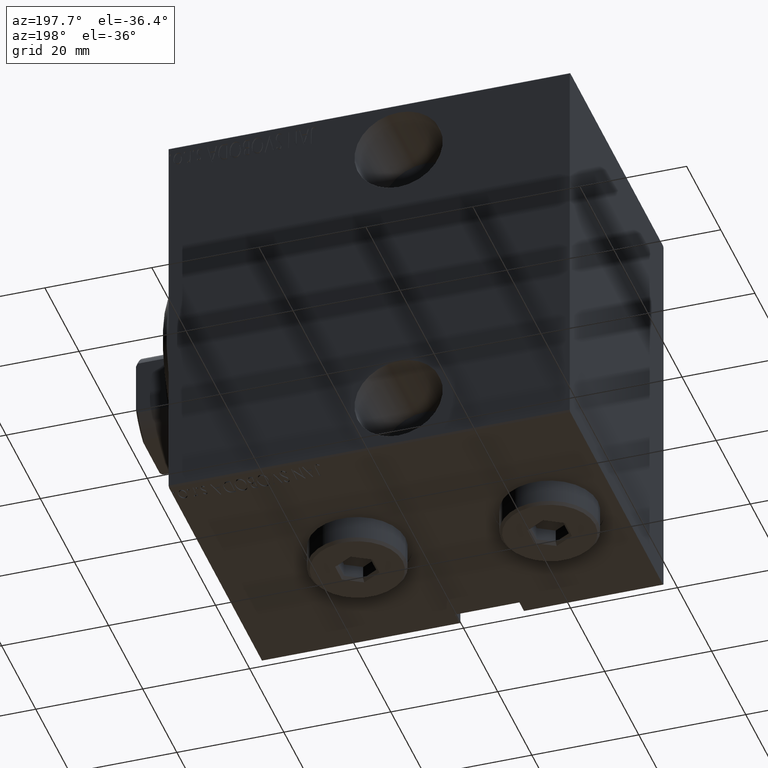
[diagram: clean part render]
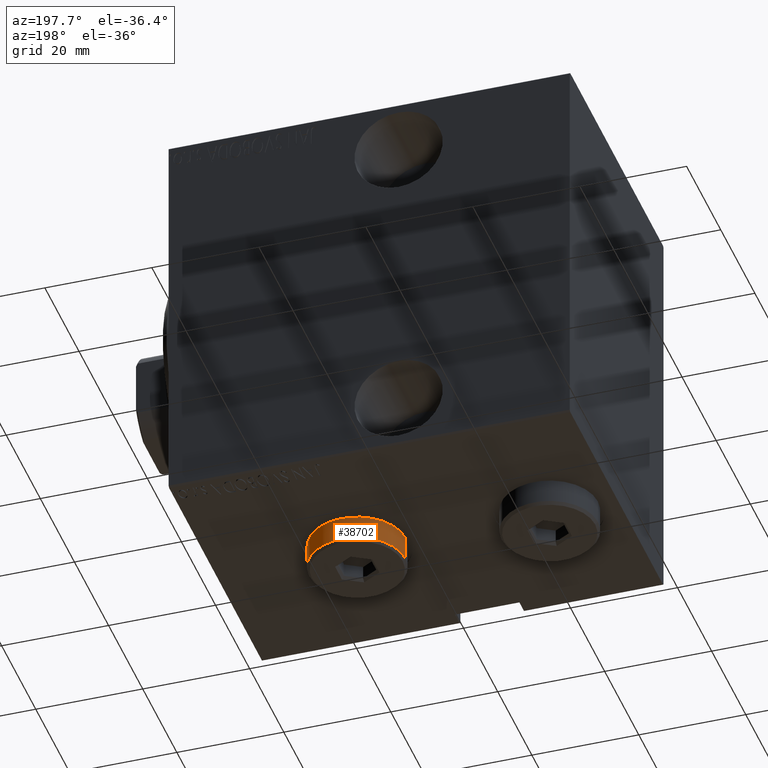
[diagram: same view with one face highlighted and labeled with its STEP entity id]
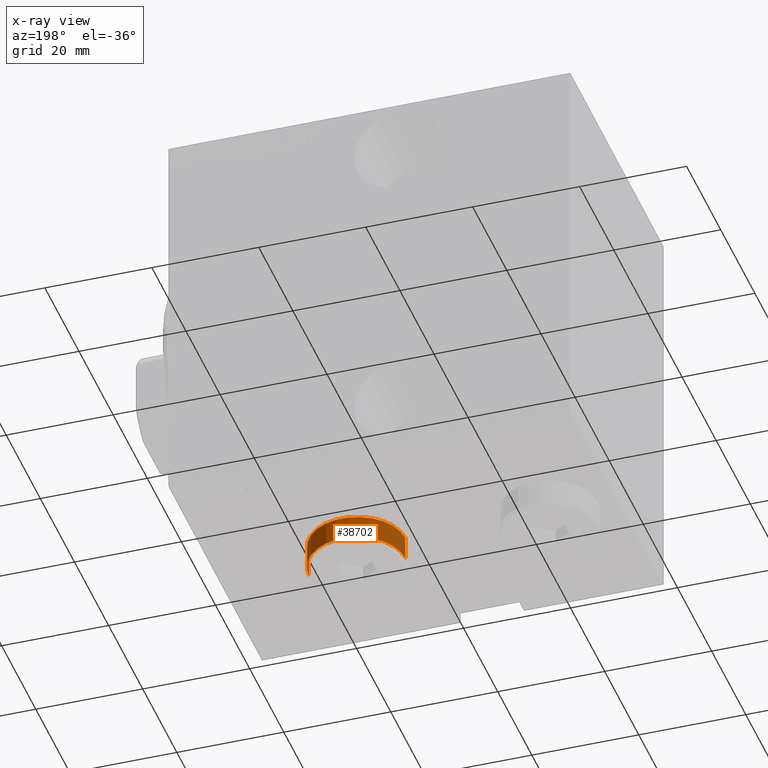
[diagram: x-ray of the same camera — body ghosted, the highlighted face saturated]
A machine part, auxiliary view. The second image highlights one B-rep face of the part: STEP entity #38702.
The next image is the same camera in x-ray: the body ghosted, the highlighted face saturated — about 0% of this face is hidden behind the body in this view.
In plain terms, the highlighted cylindrical surface (partial cylindrical patch) has radius 9 mm, axis along (0, 0, 1).
Its self-contained STEP definition (entity closure, byte-faithful):
#590 = EDGE_CURVE ( 'NONE', #31661, #14406, #19273, .T. ) ;
#766 = CARTESIAN_POINT ( 'NONE',  ( 0.000000000000000000, 0.000000000000000000, 5.000000000000000000 ) ) ;
#978 = ORIENTED_EDGE ( 'NONE', *, *, #590, .T. ) ;
#992 = FACE_OUTER_BOUND ( 'NONE', #43658, .T. ) ;
#1953 = CARTESIAN_POINT ( 'NONE',  ( 9.000000000000001776, 1.102182119232617911E-15, 4.500000000000006217 ) ) ;
#2868 = CARTESIAN_POINT ( 'NONE',  ( 0.000000000000000000, 0.000000000000000000, 0.000000000000000000 ) ) ;
#3287 = CARTESIAN_POINT ( 'NONE',  ( 9.000000000000001776, 1.102182119232617911E-15, 5.000000000000000000 ) ) ;
#3926 = AXIS2_PLACEMENT_3D ( 'NONE', #11932, #32832, #42814 ) ;
#5181 = DIRECTION ( 'NONE',  ( -0.000000000000000000, -0.000000000000000000, -1.000000000000000000 ) ) ;
#9541 = LINE ( 'NONE', #3287, #14891 ) ;
#11588 = VERTEX_POINT ( 'NONE', #1953 ) ;
#11659 = CYLINDRICAL_SURFACE ( 'NONE', #28376, 9.000000000000001776 ) ;
#11932 = CARTESIAN_POINT ( 'NONE',  ( 0.000000000000000000, 0.000000000000000000, 4.500000000000006217 ) ) ;
#12154 = AXIS2_PLACEMENT_3D ( 'NONE', #2868, #33551, #20435 ) ;
#14346 = DIRECTION ( 'NONE',  ( -0.000000000000000000, -0.000000000000000000, -1.000000000000000000 ) ) ;
#14406 = VERTEX_POINT ( 'NONE', #38671 ) ;
#14891 = VECTOR ( 'NONE', #23320, 1000.000000000000000 ) ;
#17865 = ORIENTED_EDGE ( 'NONE', *, *, #35439, .F. ) ;
#17950 = EDGE_CURVE ( 'NONE', #11588, #30152, #19585, .T. ) ;
#18347 = DIRECTION ( 'NONE',  ( -1.000000000000000000, 0.000000000000000000, 0.000000000000000000 ) ) ;
#18766 = LINE ( 'NONE', #25431, #40901 ) ;
#19273 = CIRCLE ( 'NONE', #12154, 9.000000000000001776 ) ;
#19585 = CIRCLE ( 'NONE', #3926, 9.000000000000001776 ) ;
#20435 = DIRECTION ( 'NONE',  ( 1.000000000000000000, 0.000000000000000000, 0.000000000000000000 ) ) ;
#22131 = CARTESIAN_POINT ( 'NONE',  ( -9.000000000000001776, 0.000000000000000000, 4.500000000000006217 ) ) ;
#23320 = DIRECTION ( 'NONE',  ( -0.000000000000000000, -0.000000000000000000, -1.000000000000000000 ) ) ;
#24423 = EDGE_CURVE ( 'NONE', #30152, #31661, #18766, .T. ) ;
#25431 = CARTESIAN_POINT ( 'NONE',  ( -9.000000000000001776, 0.000000000000000000, 5.000000000000000000 ) ) ;
#28376 = AXIS2_PLACEMENT_3D ( 'NONE', #766, #14346, #18347 ) ;
#30152 = VERTEX_POINT ( 'NONE', #22131 ) ;
#30260 = ORIENTED_EDGE ( 'NONE', *, *, #24423, .T. ) ;
#30907 = ORIENTED_EDGE ( 'NONE', *, *, #17950, .T. ) ;
#31661 = VERTEX_POINT ( 'NONE', #40812 ) ;
#32832 = DIRECTION ( 'NONE',  ( 0.000000000000000000, 0.000000000000000000, -1.000000000000000000 ) ) ;
#33551 = DIRECTION ( 'NONE',  ( 0.000000000000000000, 0.000000000000000000, 1.000000000000000000 ) ) ;
#35439 = EDGE_CURVE ( 'NONE', #11588, #14406, #9541, .T. ) ;
#38671 = CARTESIAN_POINT ( 'NONE',  ( 9.000000000000001776, 1.102182119232617911E-15, 0.000000000000000000 ) ) ;
#38702 = ADVANCED_FACE ( 'NONE', ( #992 ), #11659, .T. ) ;
#40812 = CARTESIAN_POINT ( 'NONE',  ( -9.000000000000001776, 0.000000000000000000, 0.000000000000000000 ) ) ;
#40901 = VECTOR ( 'NONE', #5181, 1000.000000000000000 ) ;
#42814 = DIRECTION ( 'NONE',  ( 1.000000000000000000, 0.000000000000000000, 0.000000000000000000 ) ) ;
#43658 = EDGE_LOOP ( 'NONE', ( #17865, #30907, #30260, #978 ) ) ;